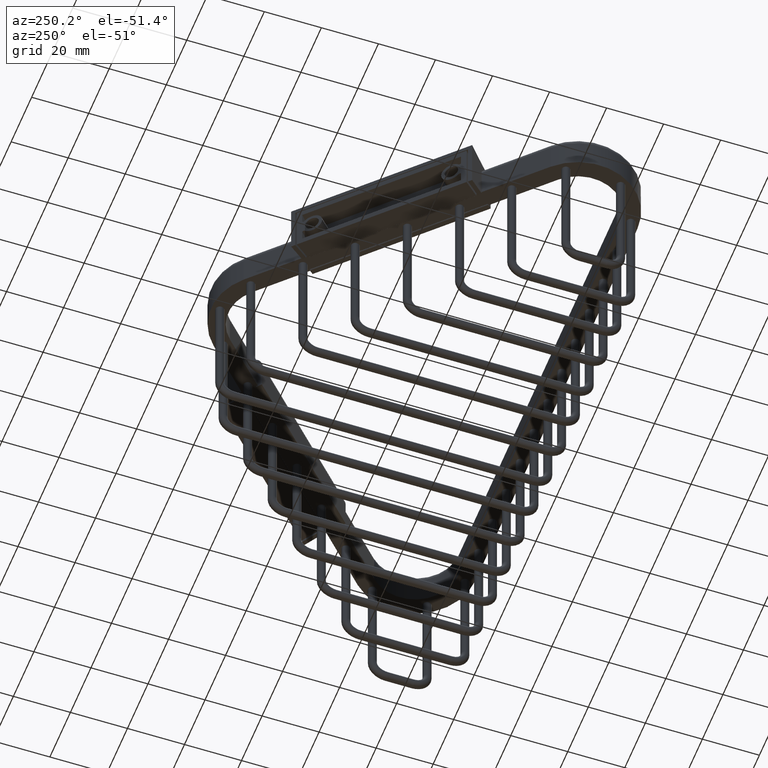
[diagram: clean part render]
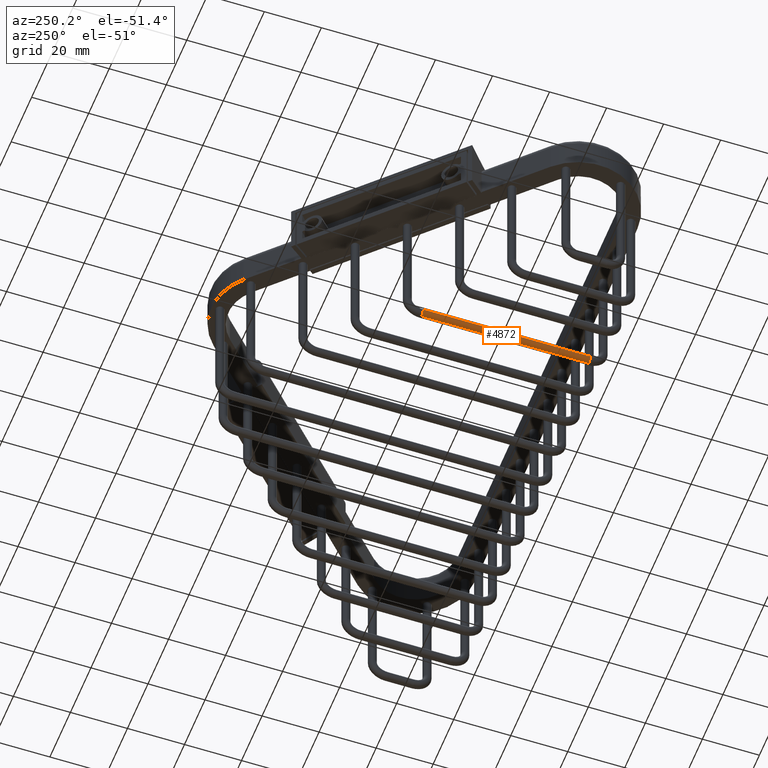
[diagram: same view with one face highlighted and labeled with its STEP entity id]
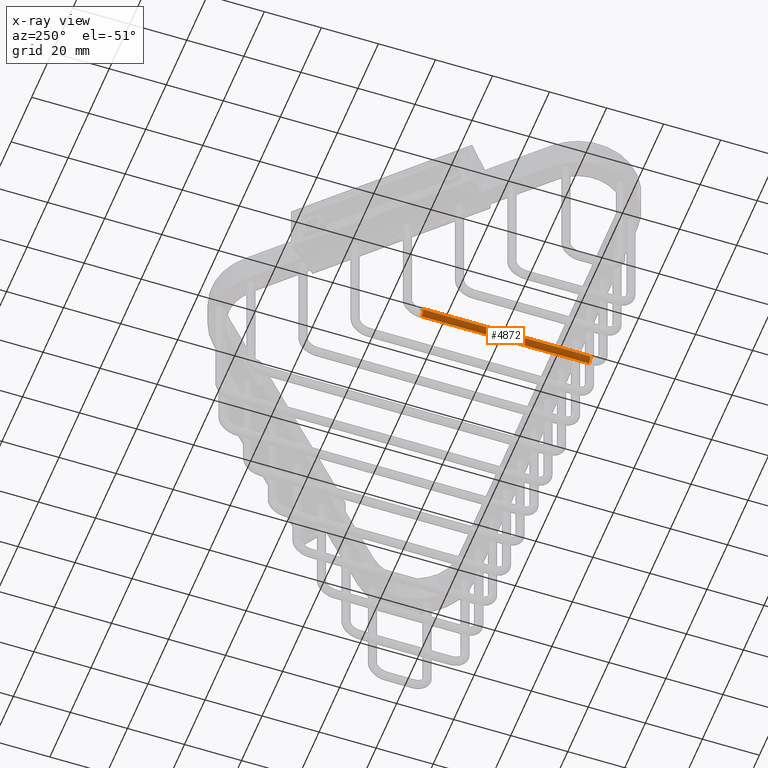
[diagram: x-ray of the same camera — body ghosted, the highlighted face saturated]
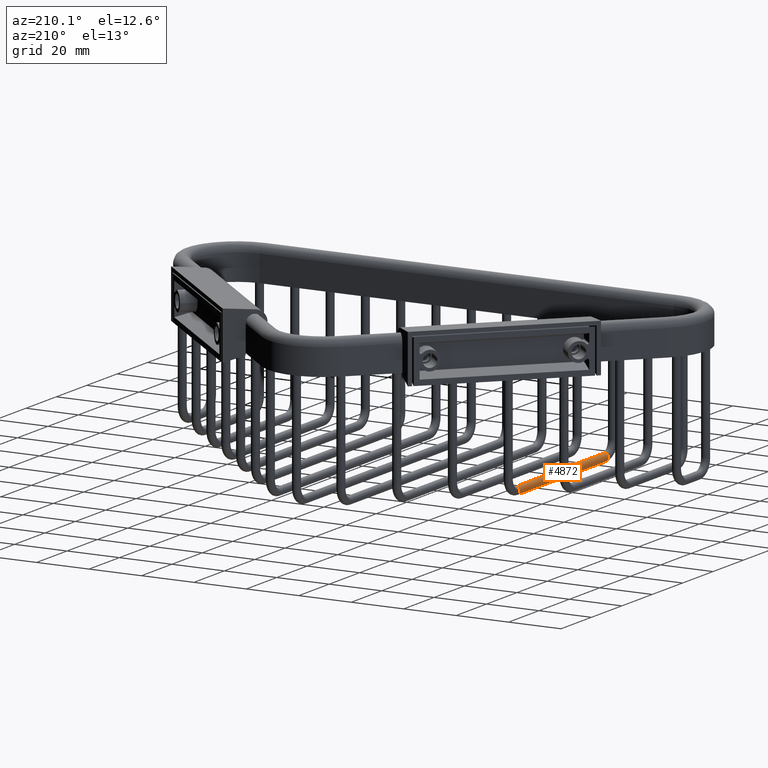
[diagram: same view with one face highlighted and labeled with its STEP entity id]
A machine part, auxiliary view. The second image highlights one B-rep face of the part: STEP entity #4872.
The next image is the same camera in x-ray: the body ghosted, the highlighted face saturated — about 0% of this face is hidden behind the body in this view.
A second angle (auxiliary view) of the same face is appended — the face is thin or edge-on in the first view.
In plain terms, the highlighted cylindrical surface (edge-blend (fillet) strip) has radius 1.4986 mm, axis along (0, 1, 0).
Its self-contained STEP definition (entity closure, byte-faithful):
#1361=DIRECTION('',(0.E0,1.E0,0.E0));
#1362=VECTOR('',#1361,2.308E0);
#1363=CARTESIAN_POINT('',(-2.12E0,3.15E-1,-1.91E0));
#1364=LINE('',#1363,#1362);
#1368=CARTESIAN_POINT('',(-2.12E0,3.15E-1,-1.969E0));
#1369=DIRECTION('',(0.E0,1.E0,0.E0));
#1370=DIRECTION('',(0.E0,0.E0,-1.E0));
#1371=AXIS2_PLACEMENT_3D('',#1368,#1369,#1370);
#1376=DIRECTION('',(0.E0,1.E0,0.E0));
#1377=VECTOR('',#1376,2.308E0);
#1378=CARTESIAN_POINT('',(-2.12E0,3.15E-1,-2.028E0));
#1379=LINE('',#1378,#1377);
#1383=CARTESIAN_POINT('',(-2.12E0,2.623E0,-1.969E0));
#1384=DIRECTION('',(0.E0,1.E0,0.E0));
#1385=DIRECTION('',(0.E0,0.E0,-1.E0));
#1386=AXIS2_PLACEMENT_3D('',#1383,#1384,#1385);
#3653=CARTESIAN_POINT('',(-2.12E0,3.15E-1,-1.91E0));
#3654=CARTESIAN_POINT('',(-2.12E0,3.15E-1,-2.028E0));
#3655=VERTEX_POINT('',#3653);
#3656=VERTEX_POINT('',#3654);
#3657=CARTESIAN_POINT('',(-2.12E0,2.623E0,-1.91E0));
#3658=CARTESIAN_POINT('',(-2.12E0,2.623E0,-2.028E0));
#3659=VERTEX_POINT('',#3657);
#3660=VERTEX_POINT('',#3658);
#4860=CARTESIAN_POINT('',(-2.12E0,3.15E-1,-1.969E0));
#4861=DIRECTION('',(0.E0,1.E0,0.E0));
#4862=DIRECTION('',(0.E0,0.E0,1.E0));
#4863=AXIS2_PLACEMENT_3D('',#4860,#4861,#4862);
#4864=CYLINDRICAL_SURFACE('',#4863,5.9E-2);
#4865=ORIENTED_EDGE('',*,*,#4825,.F.);
#4866=ORIENTED_EDGE('',*,*,#4855,.T.);
#4868=ORIENTED_EDGE('',*,*,#4867,.T.);
#4869=ORIENTED_EDGE('',*,*,#4851,.F.);
#4870=EDGE_LOOP('',(#4865,#4866,#4868,#4869));
#4871=FACE_OUTER_BOUND('',#4870,.F.);
#1372=CIRCLE('',#1371,5.9E-2);
#1387=CIRCLE('',#1386,5.9E-2);
#4825=EDGE_CURVE('',#3656,#3655,#1372,.T.);
#4851=EDGE_CURVE('',#3655,#3659,#1364,.T.);
#4855=EDGE_CURVE('',#3656,#3660,#1379,.T.);
#4867=EDGE_CURVE('',#3660,#3659,#1387,.T.);
#4872=ADVANCED_FACE('',(#4871),#4864,.T.);